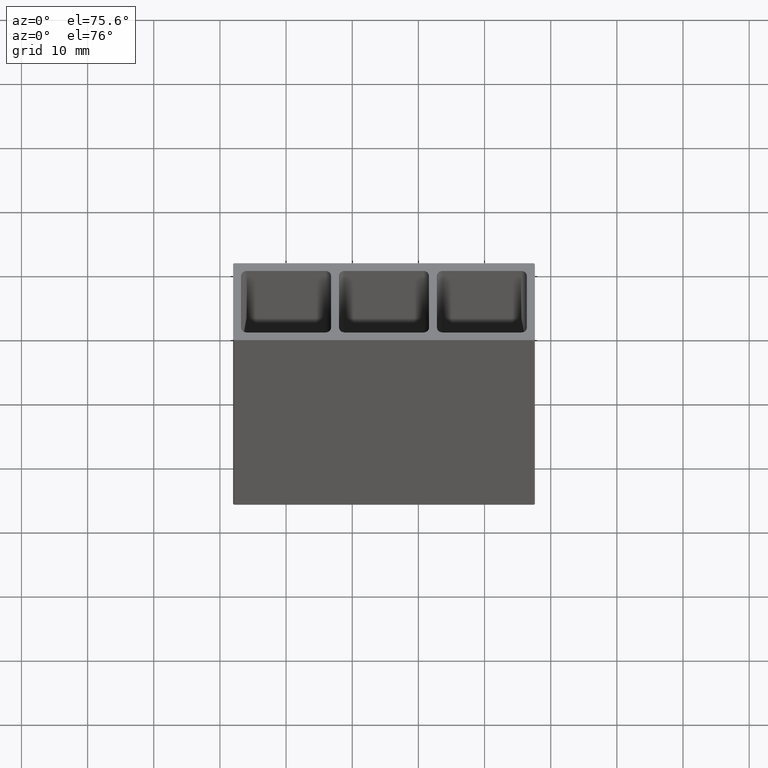
[diagram: clean part render]
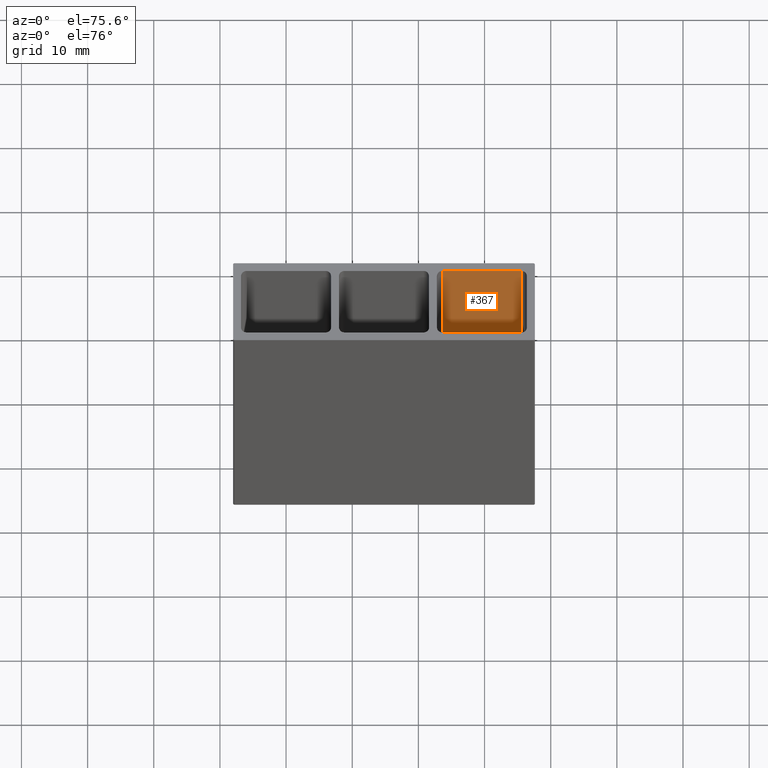
[diagram: same view with one face highlighted and labeled with its STEP entity id]
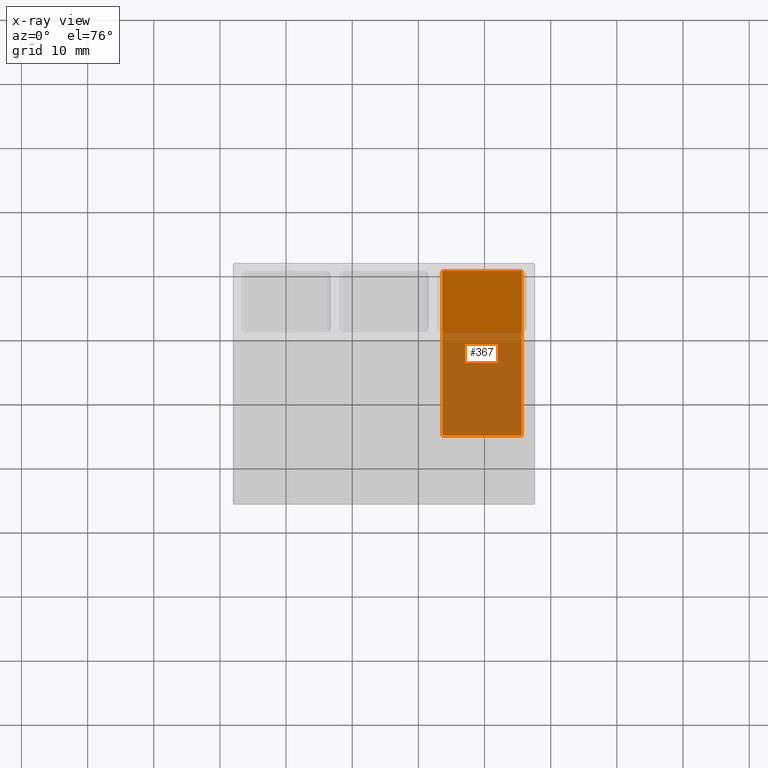
[diagram: x-ray of the same camera — body ghosted, the highlighted face saturated]
A machine part, auxiliary view. The second image highlights one B-rep face of the part: STEP entity #367.
The next image is the same camera in x-ray: the body ghosted, the highlighted face saturated — about 63% of this face is hidden behind the body in this view.
In plain terms, the highlighted planar face has unit normal (0, -1, 0).
Its self-contained STEP definition (entity closure, byte-faithful):
#4 = EDGE_CURVE ( 'NONE', #95, #1055, #940, .T. ) ;
#52 = FACE_OUTER_BOUND ( 'NONE', #284, .T. ) ;
#66 = CARTESIAN_POINT ( 'NONE',  ( 23.60000000000000500, 4.799999999999999800, 50.00000000000000000 ) ) ;
#90 = DIRECTION ( 'NONE',  ( 0.0000000000000000000, -1.000000000000000000, 0.0000000000000000000 ) ) ;
#95 = VERTEX_POINT ( 'NONE', #624 ) ;
#166 = ORIENTED_EDGE ( 'NONE', *, *, #4, .F. ) ;
#186 = CARTESIAN_POINT ( 'NONE',  ( 35.59999999999999400, 4.799999999999999800, -50.00000000000000000 ) ) ;
#284 = EDGE_LOOP ( 'NONE', ( #630, #166, #1057, #861 ) ) ;
#330 = LINE ( 'NONE', #439, #843 ) ;
#337 = VERTEX_POINT ( 'NONE', #66 ) ;
#345 = EDGE_CURVE ( 'NONE', #1055, #911, #330, .T. ) ;
#353 = CARTESIAN_POINT ( 'NONE',  ( 23.60000000000000500, 4.799999999999999800, 50.00000000000000000 ) ) ;
#365 = EDGE_CURVE ( 'NONE', #337, #911, #1061, .T. ) ;
#367 = ADVANCED_FACE ( 'NONE', ( #52 ), #739, .T. ) ;
#439 = CARTESIAN_POINT ( 'NONE',  ( 23.60000000000000500, 4.799999999999999800, -50.00000000000000000 ) ) ;
#543 = AXIS2_PLACEMENT_3D ( 'NONE', #938, #90, #550 ) ;
#550 = DIRECTION ( 'NONE',  ( 0.0000000000000000000, -0.0000000000000000000, -1.000000000000000000 ) ) ;
#589 = VECTOR ( 'NONE', #1028, 1000.000000000000000 ) ;
#621 = DIRECTION ( 'NONE',  ( -1.000000000000000000, -0.0000000000000000000, -0.0000000000000000000 ) ) ;
#624 = CARTESIAN_POINT ( 'NONE',  ( 35.59999999999999400, 4.799999999999999800, 50.00000000000000000 ) ) ;
#627 = EDGE_CURVE ( 'NONE', #95, #337, #1112, .T. ) ;
#630 = ORIENTED_EDGE ( 'NONE', *, *, #345, .F. ) ;
#642 = CARTESIAN_POINT ( 'NONE',  ( 23.60000000000000500, 4.799999999999999800, 50.00000000000000000 ) ) ;
#718 = VECTOR ( 'NONE', #832, 1000.000000000000000 ) ;
#739 = PLANE ( 'NONE',  #543 ) ;
#832 = DIRECTION ( 'NONE',  ( -1.000000000000000000, -0.0000000000000000000, -0.0000000000000000000 ) ) ;
#843 = VECTOR ( 'NONE', #621, 1000.000000000000000 ) ;
#855 = CARTESIAN_POINT ( 'NONE',  ( 35.59999999999999400, 4.799999999999999800, 50.00000000000000000 ) ) ;
#861 = ORIENTED_EDGE ( 'NONE', *, *, #365, .T. ) ;
#911 = VERTEX_POINT ( 'NONE', #1173 ) ;
#938 = CARTESIAN_POINT ( 'NONE',  ( 23.60000000000000500, 4.799999999999999800, 50.00000000000000000 ) ) ;
#940 = LINE ( 'NONE', #855, #1004 ) ;
#970 = DIRECTION ( 'NONE',  ( -0.0000000000000000000, -0.0000000000000000000, -1.000000000000000000 ) ) ;
#1004 = VECTOR ( 'NONE', #970, 1000.000000000000000 ) ;
#1028 = DIRECTION ( 'NONE',  ( -0.0000000000000000000, -0.0000000000000000000, -1.000000000000000000 ) ) ;
#1055 = VERTEX_POINT ( 'NONE', #186 ) ;
#1057 = ORIENTED_EDGE ( 'NONE', *, *, #627, .T. ) ;
#1061 = LINE ( 'NONE', #642, #589 ) ;
#1112 = LINE ( 'NONE', #353, #718 ) ;
#1173 = CARTESIAN_POINT ( 'NONE',  ( 23.60000000000000100, 4.799999999999999800, -50.00000000000000000 ) ) ;